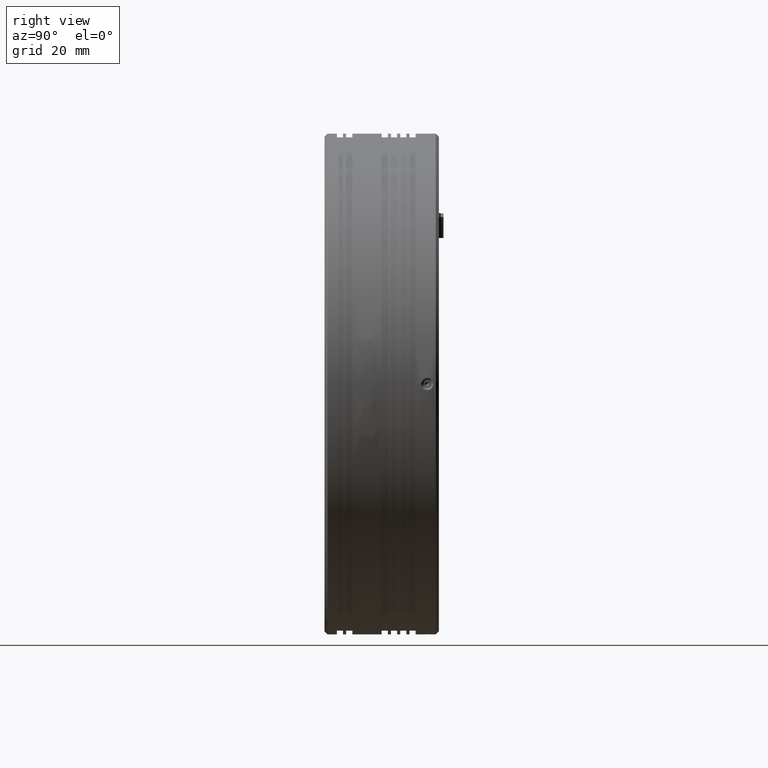
[diagram: clean part render]
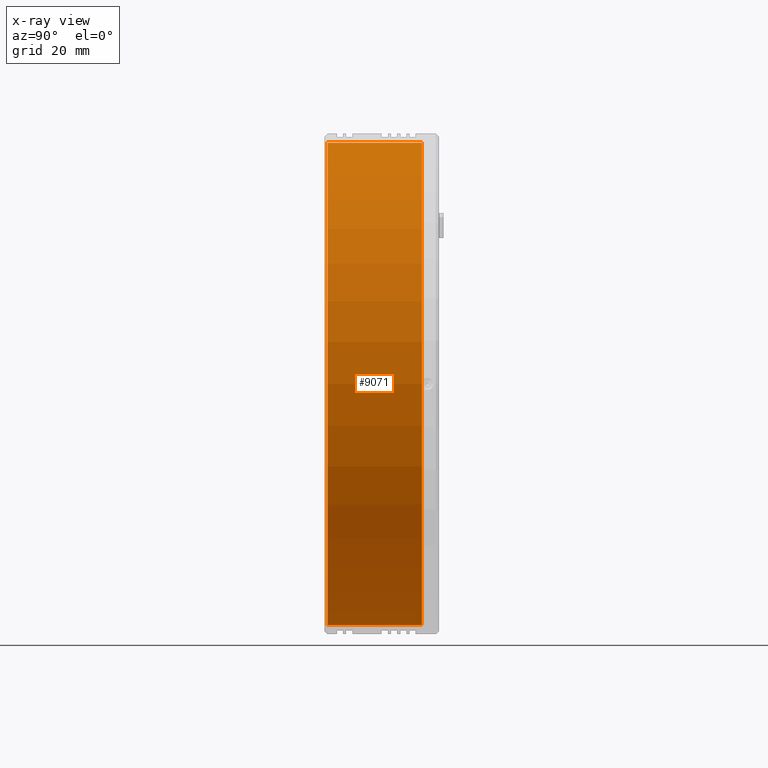
[diagram: x-ray — body ghosted, one internal face saturated and labeled with its STEP entity id]
A machine part, right view, then the same camera in x-ray: the body is ghosted and one INTERNAL B-rep face — a face not visible from any outside direction — is saturated and labeled: STEP entity #9071.
In plain terms, the highlighted cylindrical surface (partial cylindrical patch) has radius 78 mm, axis along (-0, -1, -0).
Its self-contained STEP definition (entity closure, byte-faithful):
#41 = EDGE_CURVE ( 'NONE', #12882, #12490, #12077, .T. ) ;
#103 = EDGE_CURVE ( 'NONE', #13151, #3353, #11898, .T. ) ;
#897 = ORIENTED_EDGE ( 'NONE', *, *, #4026, .F. ) ;
#1274 = DIRECTION ( 'NONE',  ( 0.0000000000000000000, 0.0000000000000000000, -1.000000000000000000 ) ) ;
#2165 = CARTESIAN_POINT ( 'NONE',  ( -9.785022266880025300, 22.37111437184006500, 78.00000000000000000 ) ) ;
#2367 = DIRECTION ( 'NONE',  ( 0.0000000000000000000, 0.0000000000000000000, -1.000000000000000000 ) ) ;
#3353 = VERTEX_POINT ( 'NONE', #2165 ) ;
#4026 = EDGE_CURVE ( 'NONE', #3353, #12882, #12755, .T. ) ;
#4097 = EDGE_CURVE ( 'NONE', #13151, #12490, #7444, .T. ) ;
#4284 = CARTESIAN_POINT ( 'NONE',  ( -9.785022266880025300, -8.128885628159936900, 78.00000000000000000 ) ) ;
#4288 = DIRECTION ( 'NONE',  ( -0.0000000000000000000, -1.000000000000000000, -0.0000000000000000000 ) ) ;
#4315 = DIRECTION ( 'NONE',  ( -0.0000000000000000000, -1.000000000000000000, -0.0000000000000000000 ) ) ;
#4367 = CARTESIAN_POINT ( 'NONE',  ( -9.785022266880036000, -37.73097191106735000, 0.0000000000000000000 ) ) ;
#4588 = ORIENTED_EDGE ( 'NONE', *, *, #41, .F. ) ;
#6698 = AXIS2_PLACEMENT_3D ( 'NONE', #4367, #4315, #2367 ) ;
#6871 = CARTESIAN_POINT ( 'NONE',  ( -9.785022266880036000, -8.128885628159936900, 0.0000000000000000000 ) ) ;
#7009 = CARTESIAN_POINT ( 'NONE',  ( -9.785022266880036000, 22.37111437184006500, -78.00000000000000000 ) ) ;
#7286 = VECTOR ( 'NONE', #12415, 1000.000000000000000 ) ;
#7444 = LINE ( 'NONE', #11500, #10183 ) ;
#7814 = DIRECTION ( 'NONE',  ( 0.0000000000000000000, 1.000000000000000000, 0.0000000000000000000 ) ) ;
#7914 = DIRECTION ( 'NONE',  ( 0.0000000000000000000, 0.0000000000000000000, -1.000000000000000000 ) ) ;
#7969 = CYLINDRICAL_SURFACE ( 'NONE', #6698, 78.00000000000000000 ) ;
#8077 = ORIENTED_EDGE ( 'NONE', *, *, #4097, .T. ) ;
#8232 = EDGE_LOOP ( 'NONE', ( #897, #11523, #8077, #4588 ) ) ;
#9071 = ADVANCED_FACE ( 'NONE', ( #11972 ), #7969, .F. ) ;
#9090 = AXIS2_PLACEMENT_3D ( 'NONE', #11686, #12642, #1274 ) ;
#9474 = AXIS2_PLACEMENT_3D ( 'NONE', #6871, #7814, #7914 ) ;
#10183 = VECTOR ( 'NONE', #4288, 1000.000000000000000 ) ;
#11387 = CARTESIAN_POINT ( 'NONE',  ( -9.785022266880025300, -37.73097191106735000, 78.00000000000000000 ) ) ;
#11500 = CARTESIAN_POINT ( 'NONE',  ( -9.785022266880036000, -37.73097191106735000, -78.00000000000000000 ) ) ;
#11523 = ORIENTED_EDGE ( 'NONE', *, *, #103, .F. ) ;
#11686 = CARTESIAN_POINT ( 'NONE',  ( -9.785022266880036000, 22.37111437184006500, 0.0000000000000000000 ) ) ;
#11898 = CIRCLE ( 'NONE', #9090, 78.00000000000000000 ) ;
#11972 = FACE_OUTER_BOUND ( 'NONE', #8232, .T. ) ;
#12077 = CIRCLE ( 'NONE', #9474, 78.00000000000000000 ) ;
#12415 = DIRECTION ( 'NONE',  ( -0.0000000000000000000, -1.000000000000000000, -0.0000000000000000000 ) ) ;
#12490 = VERTEX_POINT ( 'NONE', #12913 ) ;
#12642 = DIRECTION ( 'NONE',  ( -0.0000000000000000000, -1.000000000000000000, -0.0000000000000000000 ) ) ;
#12755 = LINE ( 'NONE', #11387, #7286 ) ;
#12882 = VERTEX_POINT ( 'NONE', #4284 ) ;
#12913 = CARTESIAN_POINT ( 'NONE',  ( -9.785022266880036000, -8.128885628159936900, -78.00000000000000000 ) ) ;
#13151 = VERTEX_POINT ( 'NONE', #7009 ) ;